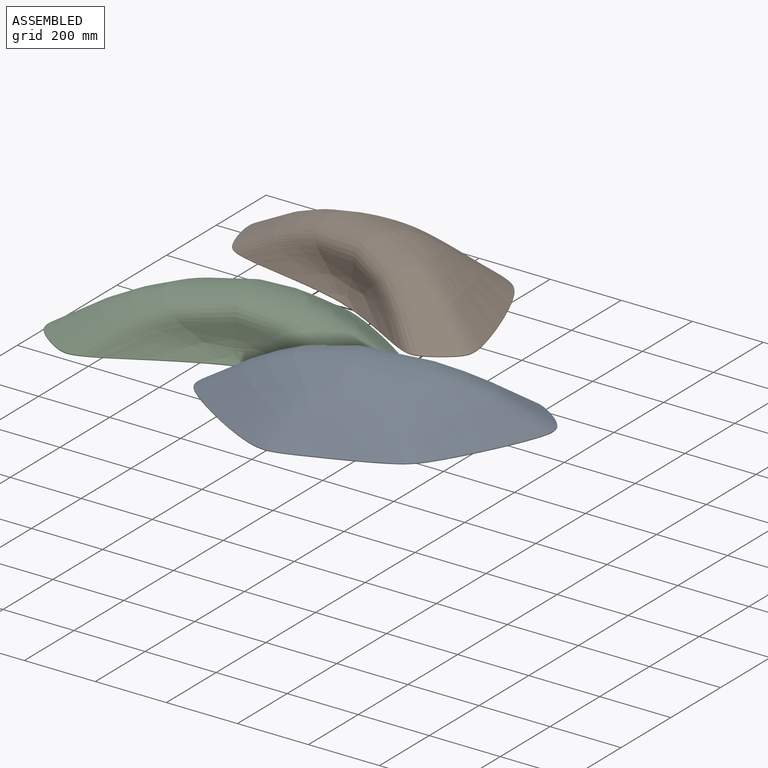
[diagram: assembled view]
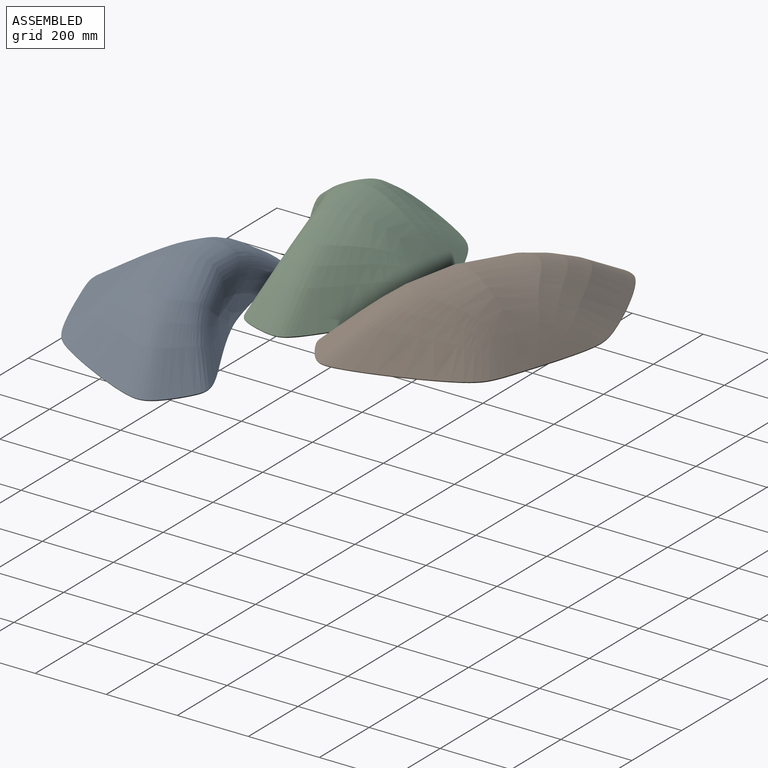
[diagram: assembled view, second angle]
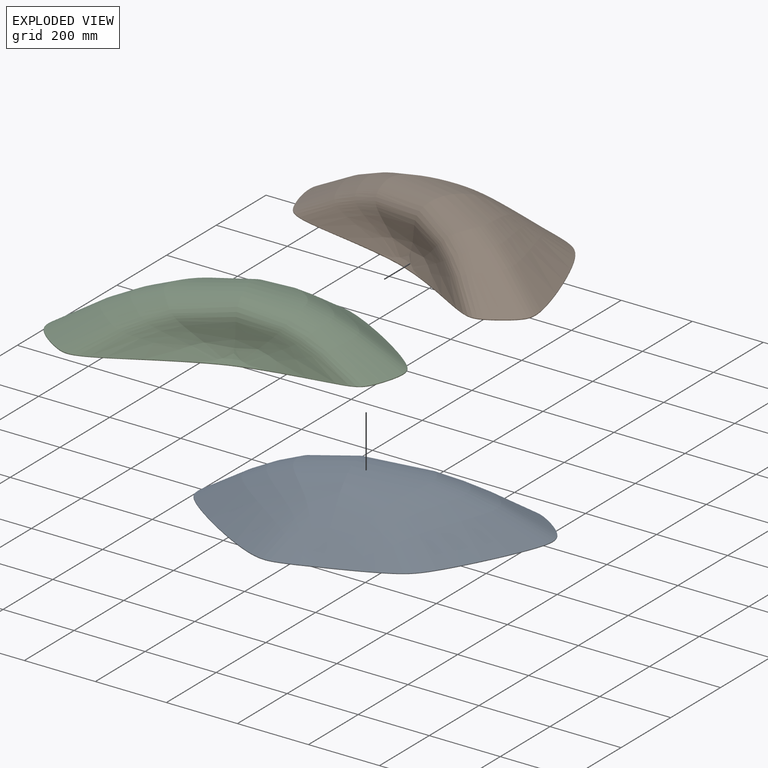
[diagram: exploded view]
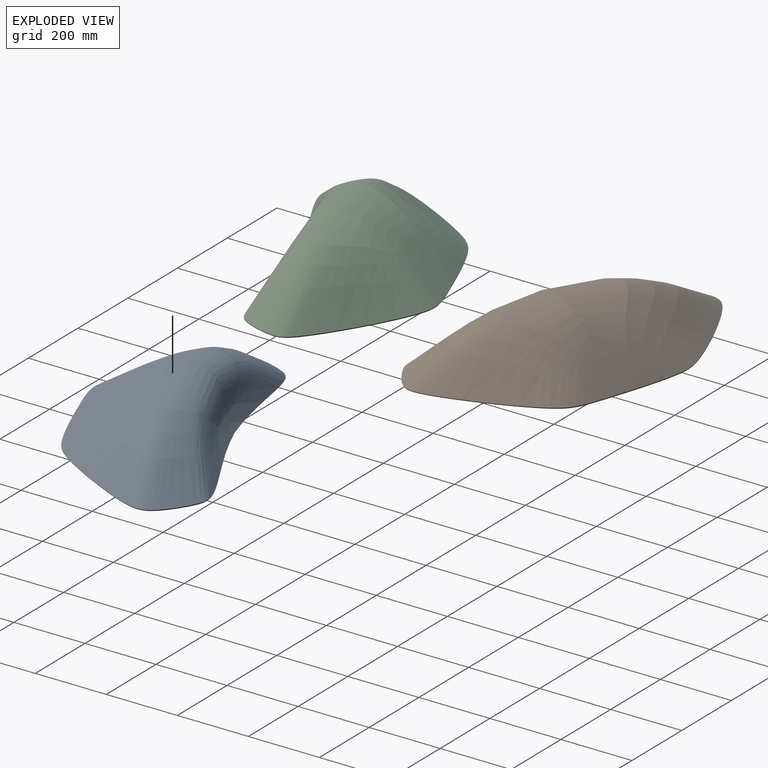
[diagram: exploded view, second angle]
ASSEMBLY  parts=3 mates=2
PART A: 5 faces, bbox 830.9x552.9x152.8 mm
  f0: plane 817.38x541.39mm, normal (0,0,-1), area 273842.6mm2, adj f3,f4
  f1: bspline ~567.96x415.27mm, area 211302.1mm2, adj f2,f4
  f2: bspline ~501.5x409.26mm, area 155881.2mm2, adj f1,f3
  f3: bspline ~501.46x412.64mm, area 4714.4mm2, adj f0,f2,f4
  f4: bspline ~568.12x416.64mm, area 5535.2mm2, adj f0,f1,f3
PART B: same geometry as A
PART C: same geometry as A
PLACE A rot(axis=(0,0,-1),140.6deg) t=(-69,-598.69,244.77)mm
PLACE B t=(-280.62,-192.11,244.77)mm
PLACE C rot(axis=(0,0,1),39.4deg) t=(-313.15,-576.96,244.77)mm
MATE planar C.f0 <-> B.f0  axis (0,0,-1) through (-444.02,-487.76,244.77)mm
MATE planar A.f0 <-> C.f0  axis (0,0,1) through (92.45,-916.87,244.77)mm
